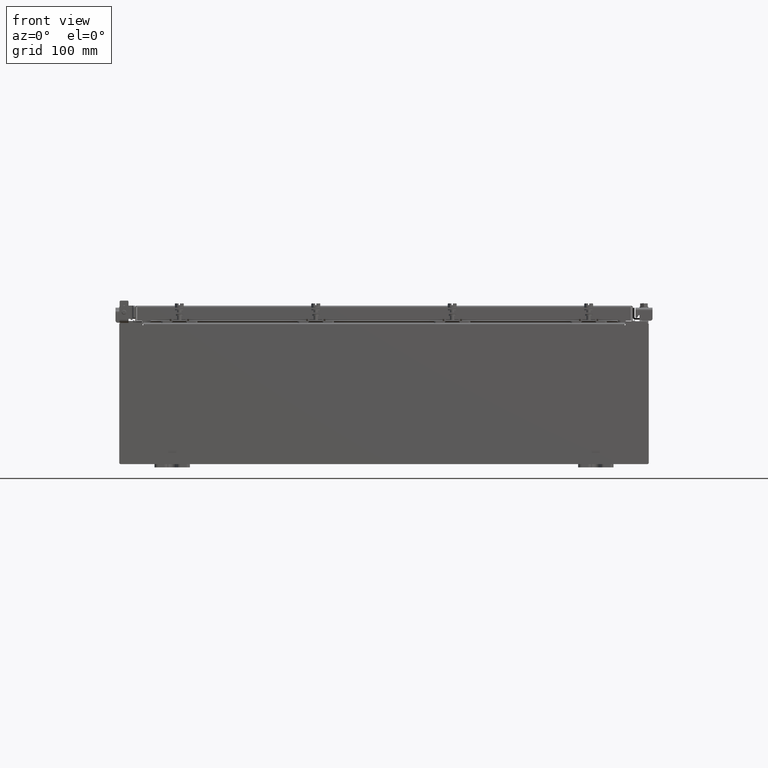
[diagram: clean part render]
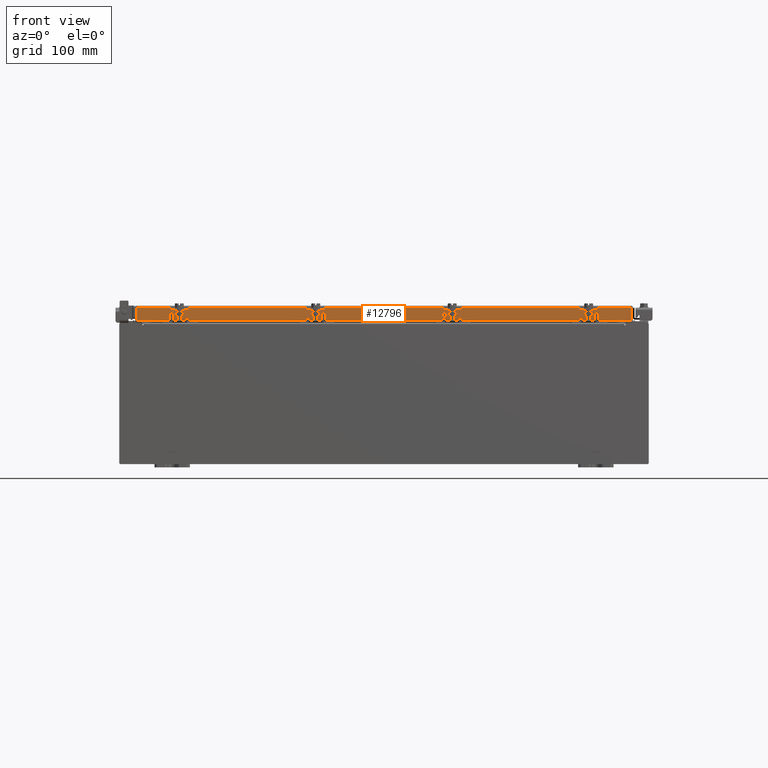
[diagram: same view with one face highlighted and labeled with its STEP entity id]
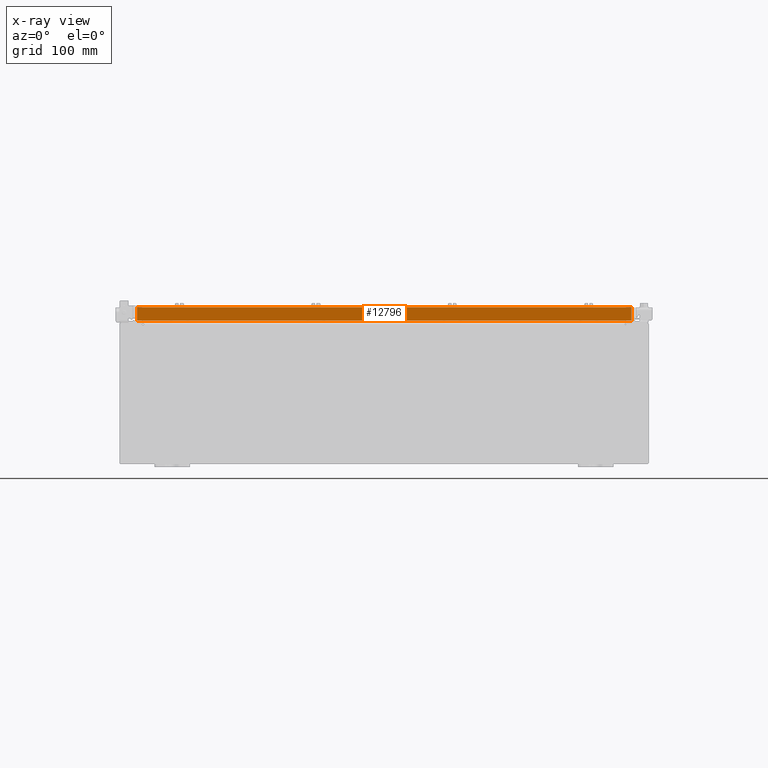
[diagram: x-ray of the same camera — body ghosted, the highlighted face saturated]
A machine part, front view. The second image highlights one B-rep face of the part: STEP entity #12796.
The next image is the same camera in x-ray: the body ghosted, the highlighted face saturated — about 0% of this face is hidden behind the body in this view.
In plain terms, the highlighted planar face has unit normal (-0, 1, -0).
Its self-contained STEP definition (entity closure, byte-faithful):
#405 = ORIENTED_EDGE ( 'NONE', *, *, #18808, .F. ) ;
#458 = VECTOR ( 'NONE', #3920, 39.37007874015748100 ) ;
#526 = DIRECTION ( 'NONE',  ( 0.0000000000000000000, 2.818880942772360100E-015, 1.000000000000000000 ) ) ;
#755 = VERTEX_POINT ( 'NONE', #16616 ) ;
#1326 = DIRECTION ( 'NONE',  ( -1.000000000000000000, 0.0000000000000000000, 0.0000000000000000000 ) ) ;
#1380 = VERTEX_POINT ( 'NONE', #4205 ) ;
#1591 = LINE ( 'NONE', #19979, #19686 ) ;
#3869 = ORIENTED_EDGE ( 'NONE', *, *, #10759, .F. ) ;
#3920 = DIRECTION ( 'NONE',  ( -0.0000000000000000000, -2.818880942772360100E-015, -1.000000000000000000 ) ) ;
#4197 = ORIENTED_EDGE ( 'NONE', *, *, #20001, .F. ) ;
#4205 = CARTESIAN_POINT ( 'NONE',  ( -14.00515786437626500, -11.09399999999999900, -0.08770000000000026400 ) ) ;
#5202 = VERTEX_POINT ( 'NONE', #11123 ) ;
#5592 = AXIS2_PLACEMENT_3D ( 'NONE', #21489, #10941, #526 ) ;
#5788 = ORIENTED_EDGE ( 'NONE', *, *, #12289, .F. ) ;
#6295 = VERTEX_POINT ( 'NONE', #15205 ) ;
#6301 = CARTESIAN_POINT ( 'NONE',  ( 14.09399999999999900, -11.09400000000000100, -0.8499999999999999800 ) ) ;
#6532 = CARTESIAN_POINT ( 'NONE',  ( 13.25515786437626500, -11.09399999999999900, -0.8500000000000010900 ) ) ;
#6834 = VECTOR ( 'NONE', #21821, 39.37007874015748100 ) ;
#7858 = LINE ( 'NONE', #12269, #13022 ) ;
#8038 = CARTESIAN_POINT ( 'NONE',  ( 14.00515786437626900, -11.09400000000000100, -0.8499999999999999800 ) ) ;
#8068 = DIRECTION ( 'NONE',  ( -1.000000000000000000, -0.0000000000000000000, 1.211441035930299800E-016 ) ) ;
#8559 = CARTESIAN_POINT ( 'NONE',  ( -14.00515786437626500, -11.09400000000000100, -0.8499999999999966500 ) ) ;
#9429 = DIRECTION ( 'NONE',  ( 0.0000000000000000000, -2.818880942772360100E-015, -1.000000000000000000 ) ) ;
#9745 = LINE ( 'NONE', #14371, #458 ) ;
#10132 = LINE ( 'NONE', #6301, #18437 ) ;
#10491 = DIRECTION ( 'NONE',  ( -1.000000000000000000, -0.0000000000000000000, 1.211441035930299800E-016 ) ) ;
#10759 = EDGE_CURVE ( 'NONE', #22362, #5202, #10132, .T. ) ;
#10941 = DIRECTION ( 'NONE',  ( -3.414908049476327800E-031, 1.000000000000000000, -2.818880942772360100E-015 ) ) ;
#10999 = ORIENTED_EDGE ( 'NONE', *, *, #19138, .F. ) ;
#11123 = CARTESIAN_POINT ( 'NONE',  ( 13.25515786437626500, -11.09399999999999900, -0.8500000000000010900 ) ) ;
#11606 = VERTEX_POINT ( 'NONE', #8559 ) ;
#12269 = CARTESIAN_POINT ( 'NONE',  ( 14.09399999999999900, -11.09400000000000100, -0.8499999999999999800 ) ) ;
#12289 = EDGE_CURVE ( 'NONE', #1380, #6295, #20809, .T. ) ;
#12468 = VECTOR ( 'NONE', #1326, 39.37007874015748100 ) ;
#12527 = FACE_OUTER_BOUND ( 'NONE', #18568, .T. ) ;
#12796 = ADVANCED_FACE ( 'NONE', ( #12527 ), #18015, .F. ) ;
#13022 = VECTOR ( 'NONE', #10491, 39.37007874015748100 ) ;
#14371 = CARTESIAN_POINT ( 'NONE',  ( 14.00515786437626900, -11.09399999999999900, -0.07470000000000015500 ) ) ;
#15205 = CARTESIAN_POINT ( 'NONE',  ( 14.00515786437626900, -11.09399999999999900, -0.08770000000000026400 ) ) ;
#16616 = CARTESIAN_POINT ( 'NONE',  ( -13.25515786437626500, -11.09399999999999900, -0.8500000000000010900 ) ) ;
#18015 = PLANE ( 'NONE',  #5592 ) ;
#18234 = EDGE_CURVE ( 'NONE', #1380, #11606, #1591, .T. ) ;
#18437 = VECTOR ( 'NONE', #8068, 39.37007874015748100 ) ;
#18568 = EDGE_LOOP ( 'NONE', ( #5788, #21275, #4197, #10999, #3869, #405 ) ) ;
#18808 = EDGE_CURVE ( 'NONE', #6295, #22362, #9745, .T. ) ;
#19138 = EDGE_CURVE ( 'NONE', #5202, #755, #21260, .T. ) ;
#19686 = VECTOR ( 'NONE', #9429, 39.37007874015748100 ) ;
#19979 = CARTESIAN_POINT ( 'NONE',  ( -14.00515786437626500, -11.09399999999999900, 3.168943672650545400E-014 ) ) ;
#20001 = EDGE_CURVE ( 'NONE', #755, #11606, #7858, .T. ) ;
#20092 = CARTESIAN_POINT ( 'NONE',  ( 14.09399999999999900, -11.09399999999999900, -0.08770000000000026400 ) ) ;
#20809 = LINE ( 'NONE', #20092, #6834 ) ;
#21260 = LINE ( 'NONE', #6532, #12468 ) ;
#21275 = ORIENTED_EDGE ( 'NONE', *, *, #18234, .T. ) ;
#21489 = CARTESIAN_POINT ( 'NONE',  ( 0.0000000000000000000, -11.09399999999999900, 3.168943672650545400E-014 ) ) ;
#21821 = DIRECTION ( 'NONE',  ( 1.000000000000000000, 3.414908049476327800E-031, -9.308245715024052500E-046 ) ) ;
#22362 = VERTEX_POINT ( 'NONE', #8038 ) ;